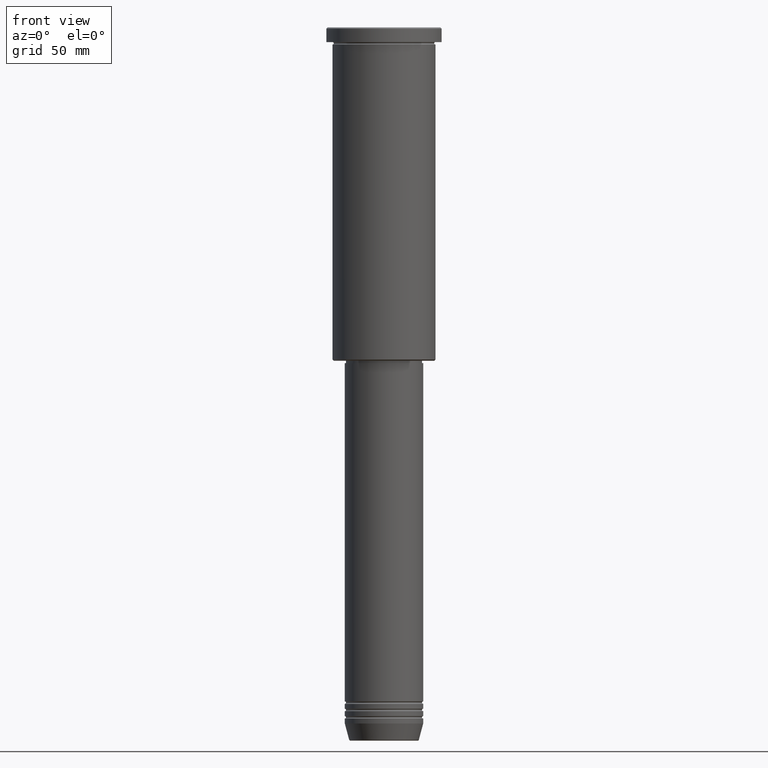
[diagram: clean part render]
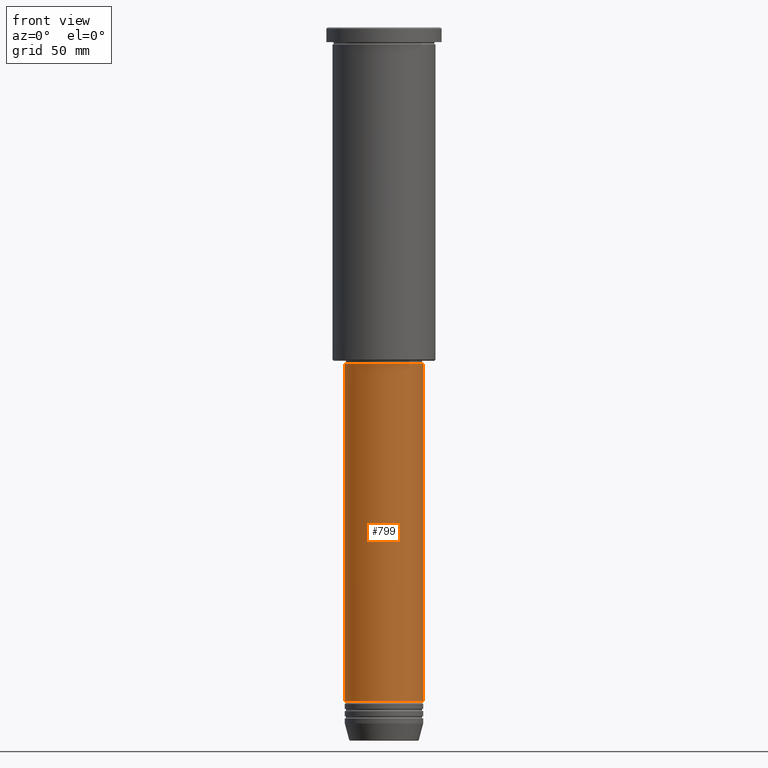
[diagram: same view with one face highlighted and labeled with its STEP entity id]
A machine part, front view. The second image highlights one B-rep face of the part: STEP entity #799.
In plain terms, the highlighted cylindrical surface (partial cylindrical patch) has radius 16 mm, axis along (-0, -0, 1).
Its self-contained STEP definition (entity closure, byte-faithful):
#12 = ORIENTED_EDGE ( 'NONE', *, *, #32, .T. ) ;
#32 = EDGE_CURVE ( 'NONE', #568, #216, #455, .T. ) ;
#57 = FACE_OUTER_BOUND ( 'NONE', #472, .T. ) ;
#83 = CARTESIAN_POINT ( 'NONE',  ( 16.00000000000000000, 0.000000000000000000, -275.0000000000000000 ) ) ;
#85 = EDGE_CURVE ( 'NONE', #656, #216, #987, .T. ) ;
#138 = AXIS2_PLACEMENT_3D ( 'NONE', #1024, #214, #1114 ) ;
#163 = CARTESIAN_POINT ( 'NONE',  ( 0.000000000000000000, 0.000000000000000000, 0.000000000000000000 ) ) ;
#214 = DIRECTION ( 'NONE',  ( -0.000000000000000000, -0.000000000000000000, 1.000000000000000000 ) ) ;
#216 = VERTEX_POINT ( 'NONE', #1011 ) ;
#270 = CARTESIAN_POINT ( 'NONE',  ( 16.00000000000000000, 0.000000000000000000, 0.000000000000000000 ) ) ;
#282 = DIRECTION ( 'NONE',  ( 1.000000000000000000, 0.000000000000000000, 0.000000000000000000 ) ) ;
#327 = DIRECTION ( 'NONE',  ( 1.000000000000000000, 0.000000000000000000, 0.000000000000000000 ) ) ;
#339 = LINE ( 'NONE', #622, #808 ) ;
#436 = DIRECTION ( 'NONE',  ( -0.000000000000000000, -0.000000000000000000, 1.000000000000000000 ) ) ;
#455 = LINE ( 'NONE', #270, #860 ) ;
#470 = ORIENTED_EDGE ( 'NONE', *, *, #85, .F. ) ;
#472 = EDGE_LOOP ( 'NONE', ( #963, #1106, #12, #470 ) ) ;
#554 = CIRCLE ( 'NONE', #138, 16.00000000000000000 ) ;
#568 = VERTEX_POINT ( 'NONE', #83 ) ;
#621 = DIRECTION ( 'NONE',  ( -0.000000000000000000, -0.000000000000000000, 1.000000000000000000 ) ) ;
#622 = CARTESIAN_POINT ( 'NONE',  ( -16.00000000000000000, 1.959434878635765131E-15, 0.000000000000000000 ) ) ;
#656 = VERTEX_POINT ( 'NONE', #863 ) ;
#702 = DIRECTION ( 'NONE',  ( -0.000000000000000000, -0.000000000000000000, 1.000000000000000000 ) ) ;
#771 = VERTEX_POINT ( 'NONE', #1131 ) ;
#799 = ADVANCED_FACE ( 'NONE', ( #57 ), #883, .T. ) ;
#808 = VECTOR ( 'NONE', #702, 1000.000000000000000 ) ;
#850 = EDGE_CURVE ( 'NONE', #771, #656, #339, .T. ) ;
#860 = VECTOR ( 'NONE', #436, 1000.000000000000000 ) ;
#863 = CARTESIAN_POINT ( 'NONE',  ( -16.00000000000000000, 1.959434878635765131E-15, -137.0000000000000000 ) ) ;
#883 = CYLINDRICAL_SURFACE ( 'NONE', #1170, 16.00000000000000000 ) ;
#963 = ORIENTED_EDGE ( 'NONE', *, *, #850, .F. ) ;
#973 = DIRECTION ( 'NONE',  ( -0.000000000000000000, -0.000000000000000000, 1.000000000000000000 ) ) ;
#987 = CIRCLE ( 'NONE', #1116, 16.00000000000000000 ) ;
#1011 = CARTESIAN_POINT ( 'NONE',  ( 16.00000000000000000, 0.000000000000000000, -137.0000000000000000 ) ) ;
#1024 = CARTESIAN_POINT ( 'NONE',  ( 0.000000000000000000, 0.000000000000000000, -275.0000000000000000 ) ) ;
#1106 = ORIENTED_EDGE ( 'NONE', *, *, #1127, .T. ) ;
#1114 = DIRECTION ( 'NONE',  ( 1.000000000000000000, 0.000000000000000000, 0.000000000000000000 ) ) ;
#1116 = AXIS2_PLACEMENT_3D ( 'NONE', #1163, #621, #282 ) ;
#1127 = EDGE_CURVE ( 'NONE', #771, #568, #554, .T. ) ;
#1131 = CARTESIAN_POINT ( 'NONE',  ( -16.00000000000000000, 1.959434878635765131E-15, -275.0000000000000000 ) ) ;
#1163 = CARTESIAN_POINT ( 'NONE',  ( 0.000000000000000000, 0.000000000000000000, -137.0000000000000000 ) ) ;
#1170 = AXIS2_PLACEMENT_3D ( 'NONE', #163, #973, #327 ) ;